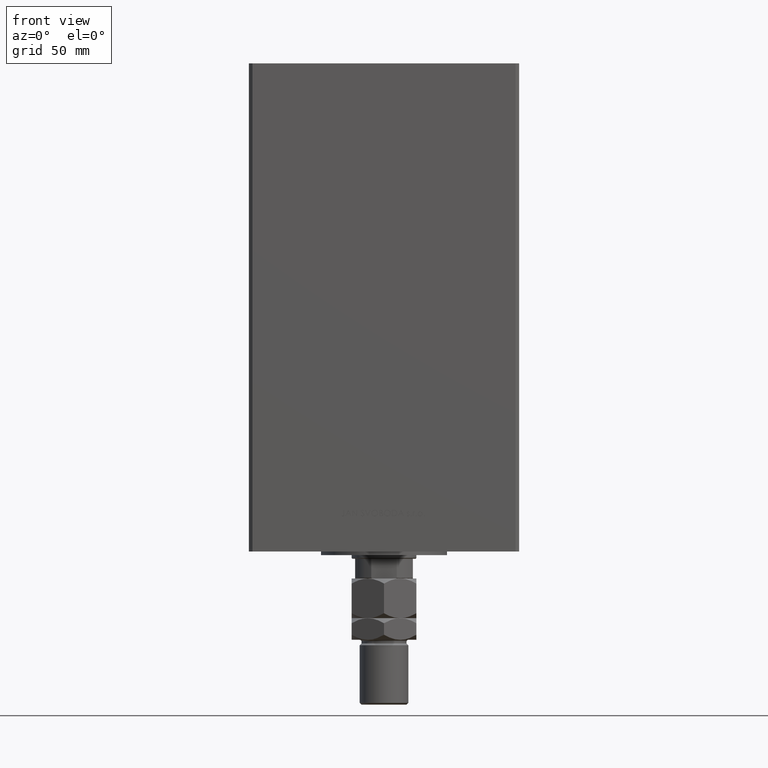
[diagram: clean part render]
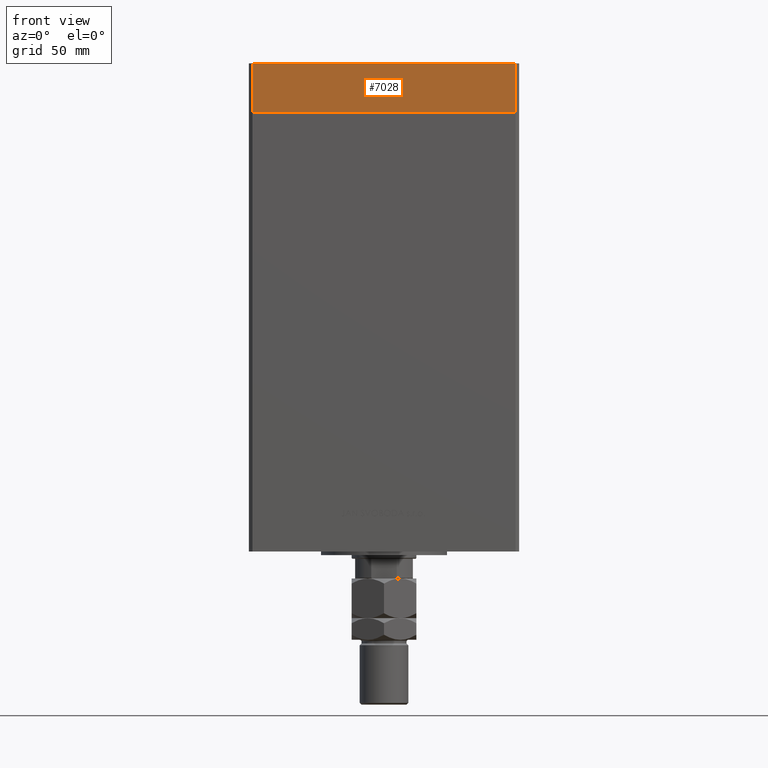
[diagram: same view with one face highlighted and labeled with its STEP entity id]
A machine part, front view. The second image highlights one B-rep face of the part: STEP entity #7028.
In plain terms, the highlighted planar face has unit normal (0, -1, 0).
Its self-contained STEP definition (entity closure, byte-faithful):
#137 = EDGE_CURVE ( 'NONE', #25209, #5584, #6918, .T. ) ;
#817 = DIRECTION ( 'NONE',  ( 1.000000000000000000, 9.505334114941407284E-17, 0.000000000000000000 ) ) ;
#2856 = VECTOR ( 'NONE', #31384, 1000.000000000000000 ) ;
#3082 = DIRECTION ( 'NONE',  ( 1.000000000000000000, 9.505334114941407284E-17, 0.000000000000000000 ) ) ;
#5584 = VERTEX_POINT ( 'NONE', #36863 ) ;
#5797 = LINE ( 'NONE', #9638, #27595 ) ;
#6472 = CARTESIAN_POINT ( 'NONE',  ( -73.00000000000001421, -62.50000000000002842, -27.00000000000000000 ) ) ;
#6918 = LINE ( 'NONE', #34776, #31064 ) ;
#7028 = ADVANCED_FACE ( 'NONE', ( #7757 ), #38960, .T. ) ;
#7757 = FACE_OUTER_BOUND ( 'NONE', #40113, .T. ) ;
#8016 = DIRECTION ( 'NONE',  ( 9.505334114941407284E-17, -1.000000000000000000, 0.000000000000000000 ) ) ;
#9638 = CARTESIAN_POINT ( 'NONE',  ( 73.00000000000001421, -62.50000000000001421, -27.00000000000000000 ) ) ;
#9886 = DIRECTION ( 'NONE',  ( 0.000000000000000000, 0.000000000000000000, 1.000000000000000000 ) ) ;
#13884 = EDGE_CURVE ( 'NONE', #25209, #17935, #28061, .T. ) ;
#14945 = ORIENTED_EDGE ( 'NONE', *, *, #137, .T. ) ;
#16201 = VECTOR ( 'NONE', #817, 1000.000000000000000 ) ;
#17935 = VERTEX_POINT ( 'NONE', #38166 ) ;
#21069 = EDGE_CURVE ( 'NONE', #5584, #45834, #5797, .T. ) ;
#25209 = VERTEX_POINT ( 'NONE', #6472 ) ;
#27595 = VECTOR ( 'NONE', #9886, 1000.000000000000000 ) ;
#28061 = LINE ( 'NONE', #43940, #2856 ) ;
#31064 = VECTOR ( 'NONE', #3082, 1000.000000000000000 ) ;
#31320 = AXIS2_PLACEMENT_3D ( 'NONE', #35628, #8016, #47651 ) ;
#31384 = DIRECTION ( 'NONE',  ( 0.000000000000000000, 0.000000000000000000, 1.000000000000000000 ) ) ;
#34776 = CARTESIAN_POINT ( 'NONE',  ( -73.00000000000001421, -62.50000000000002842, -27.00000000000000000 ) ) ;
#35612 = CARTESIAN_POINT ( 'NONE',  ( -73.00000000000001421, -62.50000000000002842, 0.000000000000000000 ) ) ;
#35628 = CARTESIAN_POINT ( 'NONE',  ( -73.00000000000001421, -62.50000000000002842, -27.00000000000000000 ) ) ;
#36863 = CARTESIAN_POINT ( 'NONE',  ( 73.00000000000001421, -62.50000000000001421, -27.00000000000000000 ) ) ;
#38166 = CARTESIAN_POINT ( 'NONE',  ( -73.00000000000001421, -62.50000000000002842, 0.000000000000000000 ) ) ;
#38960 = PLANE ( 'NONE',  #31320 ) ;
#39975 = LINE ( 'NONE', #35612, #16201 ) ;
#40113 = EDGE_LOOP ( 'NONE', ( #48209, #46064, #14945, #48719 ) ) ;
#43940 = CARTESIAN_POINT ( 'NONE',  ( -73.00000000000001421, -62.50000000000002842, -27.00000000000000000 ) ) ;
#43983 = CARTESIAN_POINT ( 'NONE',  ( 73.00000000000001421, -62.50000000000001421, 0.000000000000000000 ) ) ;
#45834 = VERTEX_POINT ( 'NONE', #43983 ) ;
#46064 = ORIENTED_EDGE ( 'NONE', *, *, #13884, .F. ) ;
#47137 = EDGE_CURVE ( 'NONE', #17935, #45834, #39975, .T. ) ;
#47651 = DIRECTION ( 'NONE',  ( 1.000000000000000000, 9.505334114941407284E-17, 0.000000000000000000 ) ) ;
#48209 = ORIENTED_EDGE ( 'NONE', *, *, #47137, .F. ) ;
#48719 = ORIENTED_EDGE ( 'NONE', *, *, #21069, .T. ) ;